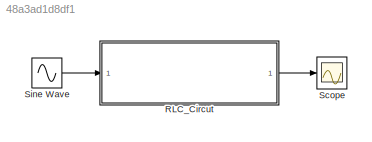
MODEL slx_48a3ad1d8df1
KIND model
CONFIG AbsTol = auto
CONFIG EnableMultiTasking = off
CONFIG FixedStep = 1e-3
CONFIG MaxStep = auto
CONFIG MinStep = auto
CONFIG RelTol = 1e-3
CONFIG SampleTimeConstraint = Unconstrained
CONFIG SolverName = FixedStepAuto
CONFIG StartTime = 0.0
CONFIG StopTime = 10.0
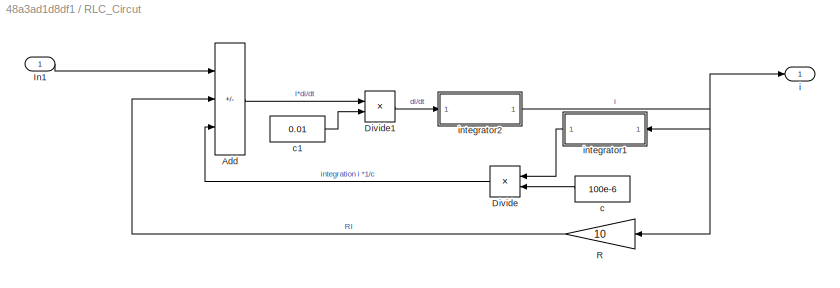
BLOCK [SubSystem] RLC_Circut
BLOCK [Sum] RLC_Circut/Add
  IconShape = rectangular
  Inputs = +--
BLOCK [Product] RLC_Circut/Divide
  Inputs = */
BLOCK [Product] RLC_Circut/Divide1
  Inputs = **
BLOCK [Inport] RLC_Circut/In1
BLOCK [Gain] RLC_Circut/R
  Gain = 10
BLOCK [Constant] RLC_Circut/c
  Value = 100e-6
BLOCK [Constant] RLC_Circut/c1
  Value = 0.01
BLOCK [Outport] RLC_Circut/i
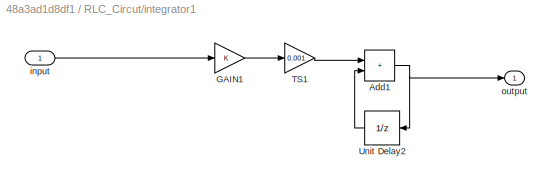
BLOCK [SubSystem] RLC_Circut/integrator1
BLOCK [Sum] RLC_Circut/integrator1/Add1
  IconShape = rectangular
BLOCK [Gain] RLC_Circut/integrator1/GAIN1
BLOCK [Gain] RLC_Circut/integrator1/TS1
  Gain = 0.001
BLOCK [UnitDelay] RLC_Circut/integrator1/Unit Delay2
  HasFrameUpgradeWarning = on
  SampleTime = -1
BLOCK [Inport] RLC_Circut/integrator1/input
BLOCK [Outport] RLC_Circut/integrator1/output
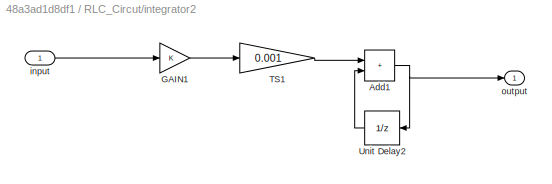
BLOCK [SubSystem] RLC_Circut/integrator2
BLOCK [Sum] RLC_Circut/integrator2/Add1
  IconShape = rectangular
BLOCK [Gain] RLC_Circut/integrator2/GAIN1
BLOCK [Gain] RLC_Circut/integrator2/TS1
  Gain = 0.001
BLOCK [UnitDelay] RLC_Circut/integrator2/Unit Delay2
  HasFrameUpgradeWarning = on
  SampleTime = -1
BLOCK [Inport] RLC_Circut/integrator2/input
BLOCK [Outport] RLC_Circut/integrator2/output
BLOCK [Scope] Scope
  Floating = off
  NumInputPorts = 1
  ScopeSpecificationString = Simulink.scopes.TimeScopeBlockCfg('CurrentConfiguration', extmgr.ConfigurationSet(extmgr.Configuration('Core','General UI',true),extmgr.Configuration('Core','Source UI',true),extmgr.Configuration('Sources','WiredSimulink',true),extmgr.Configuration('Visuals','Time Domain',true,'SerializedDisplays',{struct('MinYLimReal','-0.00022','MaxYLimReal','0.00024','YLabelReal','','MinYLimMag','0.00000','MaxY...<+1389ch>
BLOCK [Sin] Sine Wave
  SampleTime = 0
LINE RLC_Circut/Add:1 -> RLC_Circut/Divide1:1
LINE RLC_Circut/Divide1:1 -> RLC_Circut/integrator2:1
LINE RLC_Circut/Divide:1 -> RLC_Circut/Add:3
LINE RLC_Circut/In1:1 -> RLC_Circut/Add:1
LINE RLC_Circut/R:1 -> RLC_Circut/Add:2
LINE RLC_Circut/c1:1 -> RLC_Circut/Divide1:2
LINE RLC_Circut/c:1 -> RLC_Circut/Divide:2
NET RLC_Circut/integrator1/Add1:1 -> RLC_Circut/integrator1/Unit Delay2:1, RLC_Circut/integrator1/output:1
LINE RLC_Circut/integrator1/GAIN1:1 -> RLC_Circut/integrator1/TS1:1
LINE RLC_Circut/integrator1/TS1:1 -> RLC_Circut/integrator1/Add1:1
LINE RLC_Circut/integrator1/Unit Delay2:1 -> RLC_Circut/integrator1/Add1:2
LINE RLC_Circut/integrator1/input:1 -> RLC_Circut/integrator1/GAIN1:1
LINE RLC_Circut/integrator1:1 -> RLC_Circut/Divide:1
NET RLC_Circut/integrator2/Add1:1 -> RLC_Circut/integrator2/Unit Delay2:1, RLC_Circut/integrator2/output:1
LINE RLC_Circut/integrator2/GAIN1:1 -> RLC_Circut/integrator2/TS1:1
LINE RLC_Circut/integrator2/TS1:1 -> RLC_Circut/integrator2/Add1:1
LINE RLC_Circut/integrator2/Unit Delay2:1 -> RLC_Circut/integrator2/Add1:2
LINE RLC_Circut/integrator2/input:1 -> RLC_Circut/integrator2/GAIN1:1
NET RLC_Circut/integrator2:1 -> RLC_Circut/R:1, RLC_Circut/i:1, RLC_Circut/integrator1:1
LINE RLC_Circut:1 -> Scope:1
LINE Sine Wave:1 -> RLC_Circut:1
note: NET lines group one-source signal fan-out (src -> all destinations, sorted); 1:1 wires keep LINE
